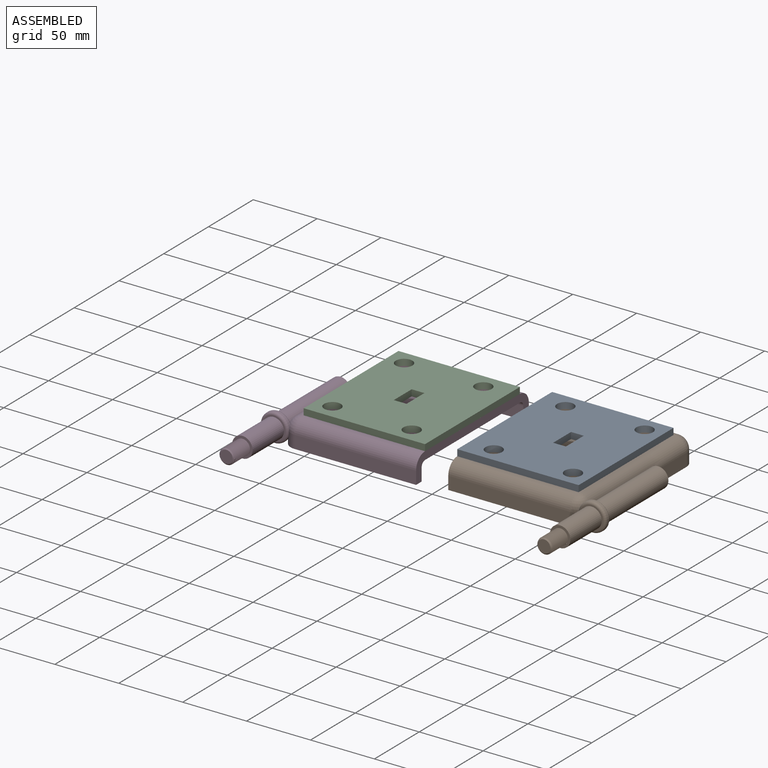
[diagram: assembled view]
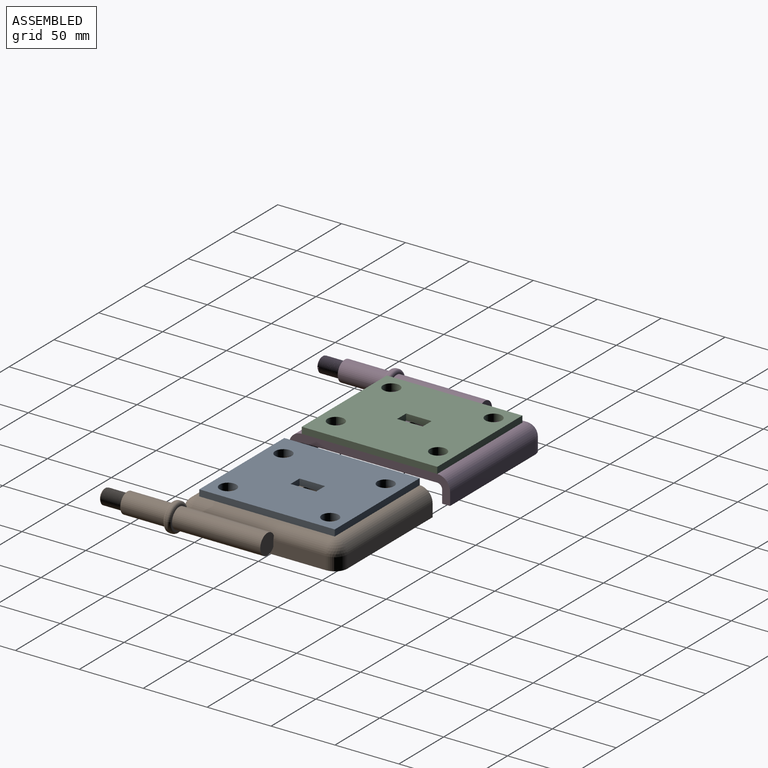
[diagram: assembled view, second angle]
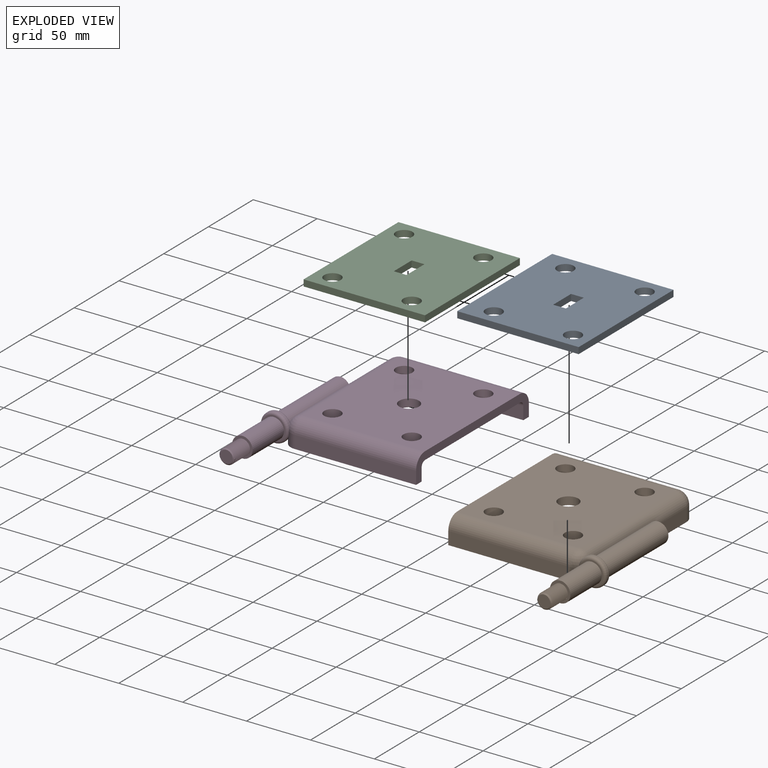
[diagram: exploded view]
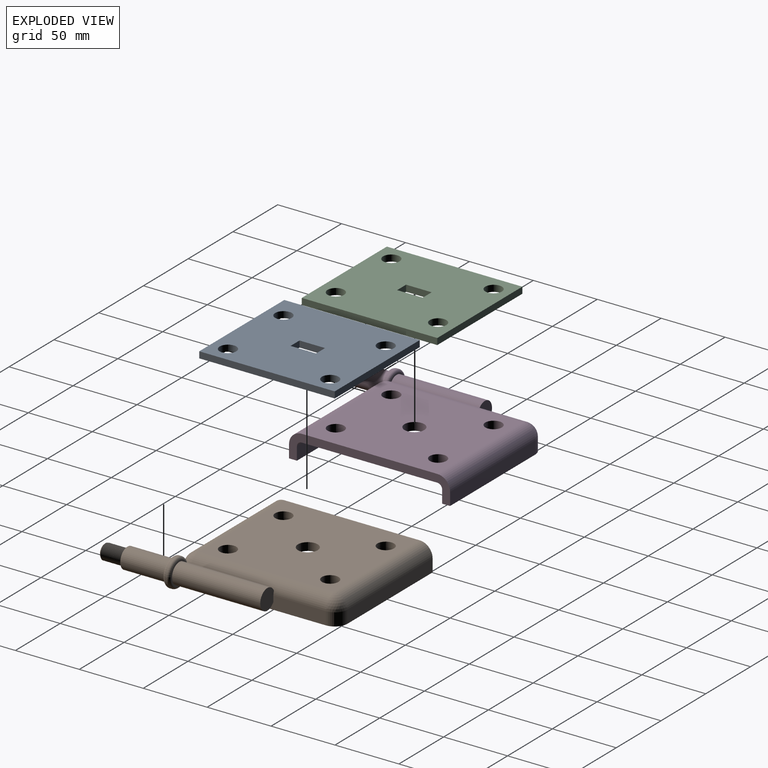
[diagram: exploded view, second angle]
ASSEMBLY  parts=4 mates=2
PART A: 14 faces, bbox 95x106x5 mm
  f0: plane 106x5mm, normal (-1,0,0), area 530mm2, adj f1,f7,f12,f13
  f1: plane 95x5mm, normal (0,1,0), area 475mm2, adj f0,f2,f12,f13
  f2: plane 106x5mm, normal (1,0,0), area 530mm2, adj f1,f7,f12,f13
  f3: plane 20x5mm, normal (1,0,0), area 100mm2, adj f4,f10,f12,f13
  f4: plane 10x5mm, normal (0,1,0), area 50mm2, adj f3,f5,f12,f13
  f5: plane 20x5mm, normal (-1,0,0), area 100mm2, adj f4,f10,f12,f13
  f6: cylinder r=6.5mm len=13mm, axis (0,0,-1), area 204.2mm2, adj f12,f13
  f7: plane 95x5mm, normal (0,-1,0), area 475mm2, adj f0,f2,f12,f13
  f8: cylinder r=6.5mm len=13mm, axis (0,0,-1), area 204.2mm2, adj f12,f13
  f9: cylinder r=6.5mm len=13mm, axis (0,0,-1), area 204.2mm2, adj f12,f13
  f10: plane 10x5mm, normal (0,-1,0), area 50mm2, adj f3,f5,f12,f13
  f11: cylinder r=6.5mm len=13mm, axis (0,0,-1), area 204.2mm2, adj f12,f13
  f12: plane 106x95mm, normal (0,0,1), area 9339.1mm2, adj f0,f1,f2,f3,f4,f5,f6,f7
  f13: plane 106x95mm, normal (0,0,-1), area 9339.1mm2, adj f0,f1,f2,f3,f4,f5,f6,f7
PART B: 41 faces, bbox 123.6x178.5x23.8 mm
  f0: cone r=6mm half-angle=45deg, axis (0,1,0), area 43.8mm2, adj f23,f24,f37,f39
  f1: plane 126x105mm, normal (0,0,-1), area 1963.4mm2, adj f2,f3,f7,f8,f9,f11,f25,f26
  f2: plane 106x10mm, normal (1,0,0), area 775.9mm2, adj f1,f3,f5,f11,f14,f15
  f3: cylinder r=10mm len=10mm, axis (0,0,1), area 113mm2, adj f1,f2,f4,f9,f15,f16,f17,f18
  f4: sphere r=10mm, area 124mm2, adj f3,f5,f12,f15,f16,f17,f18,f19
  f5: cylinder r=10mm len=106mm, axis (0,1,0), area 1444.1mm2, adj f2,f4,f6,f13,f14,f15
  f6: plane 106x95mm, normal (0,0,1), area 9350.4mm2, adj f5,f7,f10,f12,f31,f32,f33,f34
  f7: plane 126x20mm, normal (-1,0,0), area 915.6mm2, adj f1,f6,f8,f9,f10,f12,f25,f26
  f8: plane 95x10mm, normal (0,1,0), area 950mm2, adj f1,f7,f10,f11
  f9: plane 95x10mm, normal (0,-1,0), area 950mm2, adj f1,f3,f7,f12
  f10: cylinder r=10mm len=95mm, axis (1,0,0), area 1492.3mm2, adj f6,f7,f8,f13
  f11: cylinder r=10mm len=10mm, axis (0,0,-1), area 157.1mm2, adj f1,f2,f8,f13
  f12: cylinder r=10mm len=95mm, axis (-1,0,0), area 1492.3mm2, adj f4,f6,f7,f9
  f13: sphere r=10mm, area 157.1mm2, adj f5,f10,f11
  f14: plane 16x15.27mm, normal (0,1,0), area 194.3mm2, adj f2,f5,f15
  f15: cylinder r=8mm len=69mm, axis (0,1,0), area 2918.6mm2, adj f2,f3,f4,f5,f14,f16
  f16: plane 18.04x17.3mm, normal (0,1,0), area 46.4mm2, adj f3,f4,f15,f17
  f17: torus R=9mm, axis (0,1,0), area 165.7mm2, adj f3,f4,f16,f18
  f18: cylinder r=11mm len=22mm, axis (0,1,0), area 89.4mm2, adj f3,f4,f17,f19
  f19: torus R=9mm, axis (0,1,0), area 200.4mm2, adj f3,f4,f18,f20
  f20: plane 18x18mm, normal (0,-1,0), area 53.4mm2, adj f19,f21
  f21: cylinder r=8mm len=35mm, axis (0,1,0), area 1759.3mm2, adj f20,f22
  f22: plane 16x16mm, normal (0,-1,0), area 88mm2, adj f21,f23,f36
  f23: cylinder r=6mm len=17mm, axis (0,1,0), area 28.5mm2, adj f0,f22,f37,f38,f39,f40
  f24: plane 10x10mm, normal (0,-1,0), area 78.5mm2, adj f0
  f25: plane 98.8x10mm, normal (0,-1,0), area 988mm2, adj f1,f7,f29,f30
  f26: plane 98.8x10mm, normal (0,1,0), area 988mm2, adj f1,f7,f27,f30
  f27: cylinder r=3.8mm len=98.8mm, axis (-1,0,0), area 589.7mm2, adj f7,f26,f28,f30
  f28: plane 106x98.8mm, normal (0,0,-1), area 9753.2mm2, adj f7,f27,f29,f30,f31,f32,f33,f34
  f29: cylinder r=3.8mm len=98.8mm, axis (-1,0,0), area 589.7mm2, adj f7,f25,f28,f30
  f30: plane 113.6x13.8mm, normal (-1,0,0), area 1561.5mm2, adj f1,f25,f26,f27,f28,f29
  f31: cylinder r=7.75mm len=15.5mm, axis (0,0,1), area 301.9mm2, adj f6,f28
  f32: cylinder r=6.5mm len=13mm, axis (0,0,1), area 253.2mm2, adj f6,f28
  f33: cylinder r=6.5mm len=13mm, axis (0,0,1), area 253.2mm2, adj f6,f28
  f34: cylinder r=6.5mm len=13mm, axis (0,0,1), area 253.2mm2, adj f6,f28
  f35: cylinder r=6.5mm len=13mm, axis (0,0,1), area 253.2mm2, adj f6,f28
  f36: cylinder r=6mm len=10.78mm, axis (0,1,0), area 5.8mm2, adj f22,f38,f40
  f37: plane 1.07x1.01mm, normal (0,0,1), area 0.5mm2, adj f0,f23,f39,f40
  f38: plane 1.24x0.87mm, normal (0.59,0,0.81), area 0.7mm2, adj f23,f36,f39,f40
  f39: bspline ~17.7x13.86mm, area 574.6mm2, adj f0,f23,f37,f38,f40
  f40: bspline ~17.7x13.86mm, area 580.6mm2, adj f23,f36,f37,f38,f39
PART C: 14 faces, bbox 95x106x5 mm
  f0: plane 106x5mm, normal (1,0,0), area 530mm2, adj f1,f7,f12,f13
  f1: plane 95x5mm, normal (0,1,0), area 475mm2, adj f0,f2,f12,f13
  f2: plane 106x5mm, normal (-1,0,0), area 530mm2, adj f1,f7,f12,f13
  f3: plane 20x5mm, normal (-1,0,0), area 100mm2, adj f4,f10,f12,f13
  f4: plane 10x5mm, normal (0,1,0), area 50mm2, adj f3,f5,f12,f13
  f5: plane 20x5mm, normal (1,0,0), area 100mm2, adj f4,f10,f12,f13
  f6: cylinder r=6.5mm len=13mm, axis (0,0,-1), area 204.2mm2, adj f12,f13
  f7: plane 95x5mm, normal (0,-1,0), area 475mm2, adj f0,f2,f12,f13
  f8: cylinder r=6.5mm len=13mm, axis (0,0,-1), area 204.2mm2, adj f12,f13
  f9: cylinder r=6.5mm len=13mm, axis (0,0,-1), area 204.2mm2, adj f12,f13
  f10: plane 10x5mm, normal (0,-1,0), area 50mm2, adj f3,f5,f12,f13
  f11: cylinder r=6.5mm len=13mm, axis (0,0,-1), area 204.2mm2, adj f12,f13
  f12: plane 106x95mm, normal (0,0,1), area 9339.1mm2, adj f0,f1,f2,f3,f4,f5,f6,f7
  f13: plane 106x95mm, normal (0,0,-1), area 9339.1mm2, adj f0,f1,f2,f3,f4,f5,f6,f7
PART D: 41 faces, bbox 123.6x178.5x23.8 mm
  f0: cone r=6mm half-angle=45deg, axis (0,1,0), area 43.8mm2, adj f23,f24,f37,f39
  f1: plane 126x105mm, normal (0,0,-1), area 1963.4mm2, adj f2,f3,f7,f8,f9,f11,f25,f26
  f2: plane 106x10mm, normal (-1,0,0), area 775.9mm2, adj f1,f3,f5,f11,f14,f15
  f3: cylinder r=10mm len=10mm, axis (0,0,1), area 113.1mm2, adj f1,f2,f4,f9,f15,f16,f17,f18
  f4: sphere r=10mm, area 125.2mm2, adj f3,f5,f12,f15,f16,f17,f18,f19
  f5: cylinder r=10mm len=106mm, axis (0,1,0), area 1444.1mm2, adj f2,f4,f6,f13,f14,f15
  f6: plane 106x95mm, normal (0,0,1), area 9350.4mm2, adj f5,f7,f10,f12,f31,f32,f33,f34
  f7: plane 126x20mm, normal (1,0,0), area 915.6mm2, adj f1,f6,f8,f9,f10,f12,f25,f26
  f8: plane 95x10mm, normal (0,1,0), area 950mm2, adj f1,f7,f10,f11
  f9: plane 95x10mm, normal (0,-1,0), area 950mm2, adj f1,f3,f7,f12
  f10: cylinder r=10mm len=95mm, axis (-1,0,0), area 1492.3mm2, adj f6,f7,f8,f13
  f11: cylinder r=10mm len=10mm, axis (0,0,-1), area 157.1mm2, adj f1,f2,f8,f13
  f12: cylinder r=10mm len=95mm, axis (1,0,0), area 1492.3mm2, adj f4,f6,f7,f9
  f13: sphere r=10mm, area 157.1mm2, adj f5,f10,f11
  f14: plane 16x15.27mm, normal (0,1,0), area 194.3mm2, adj f2,f5,f15
  f15: cylinder r=8mm len=69mm, axis (0,1,0), area 2918.6mm2, adj f2,f3,f4,f5,f14,f16
  f16: plane 18.04x17.3mm, normal (0,1,0), area 46.4mm2, adj f3,f4,f15,f17
  f17: torus R=9mm, axis (0,1,0), area 165.7mm2, adj f3,f4,f16,f18
  f18: cylinder r=11mm len=22mm, axis (0,1,0), area 89.4mm2, adj f3,f4,f17,f19
  f19: torus R=9mm, axis (0,1,0), area 200.4mm2, adj f3,f4,f18,f20
  f20: plane 18x18mm, normal (0,-1,0), area 53.4mm2, adj f19,f21
  f21: cylinder r=8mm len=35mm, axis (0,1,0), area 1759.3mm2, adj f20,f22
  f22: plane 16x16mm, normal (0,-1,0), area 88mm2, adj f21,f23,f36
  f23: cylinder r=6mm len=17mm, axis (0,1,0), area 9.1mm2, adj f0,f22,f37,f38,f39,f40
  f24: plane 10x10mm, normal (0,-1,0), area 78.5mm2, adj f0
  f25: plane 98.8x10mm, normal (0,-1,0), area 988mm2, adj f1,f7,f29,f30
  f26: plane 98.8x10mm, normal (0,1,0), area 988mm2, adj f1,f7,f27,f30
  f27: cylinder r=3.8mm len=98.8mm, axis (1,0,0), area 589.7mm2, adj f7,f26,f28,f30
  f28: plane 106x98.8mm, normal (0,0,-1), area 9753.2mm2, adj f7,f27,f29,f30,f31,f32,f33,f34
  f29: cylinder r=3.8mm len=98.8mm, axis (1,0,0), area 589.7mm2, adj f7,f25,f28,f30
  f30: plane 113.6x13.8mm, normal (1,0,0), area 1561.5mm2, adj f1,f25,f26,f27,f28,f29
  f31: cylinder r=7.75mm len=15.5mm, axis (0,0,1), area 301.9mm2, adj f6,f28
  f32: cylinder r=6.5mm len=13mm, axis (0,0,1), area 253.2mm2, adj f6,f28
  f33: cylinder r=6.5mm len=13mm, axis (0,0,1), area 253.2mm2, adj f6,f28
  f34: cylinder r=6.5mm len=13mm, axis (0,0,1), area 253.2mm2, adj f6,f28
  f35: cylinder r=6.5mm len=13mm, axis (0,0,1), area 253.2mm2, adj f6,f28
  f36: cylinder r=6mm len=10.78mm, axis (0,1,0), area 5.8mm2, adj f22,f38,f40
  f37: plane 1.07x1.01mm, normal (0,0,1), area 0.5mm2, adj f0,f23,f39,f40
  f38: plane 1.24x0.87mm, normal (-0.59,0,0.81), area 0.7mm2, adj f23,f36,f39,f40
  f39: bspline ~17.62x12mm, area 575.6mm2, adj f0,f23,f37,f38,f40
  f40: bspline ~17.7x13.86mm, area 580.6mm2, adj f23,f36,f37,f38,f39
PLACE A rot(axis=(-0.03,0.54,0.84),0deg) t=(10.06,-67.65,-7.87)mm
PLACE B rot(axis=(-0.03,0.54,0.84),0deg) t=(10.06,-67.65,-7.87)mm
PLACE C t=(-3.27,-70.29,-9.54)mm
PLACE D t=(-3.27,-70.29,-9.54)mm
MATE fastened B.f34 <-> A.f9  axis (0,0,1) through (91.56,35.35,12.13)mm
MATE fastened D.f35 <-> C.f11  axis (0,0,1) through (-32.77,32.71,10.46)mm
